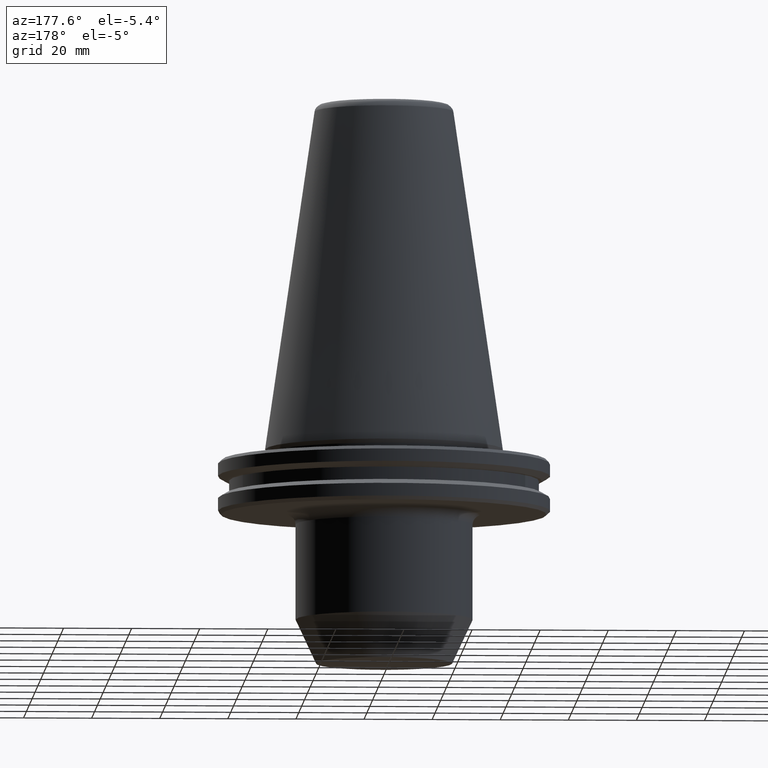
[diagram: clean part render]
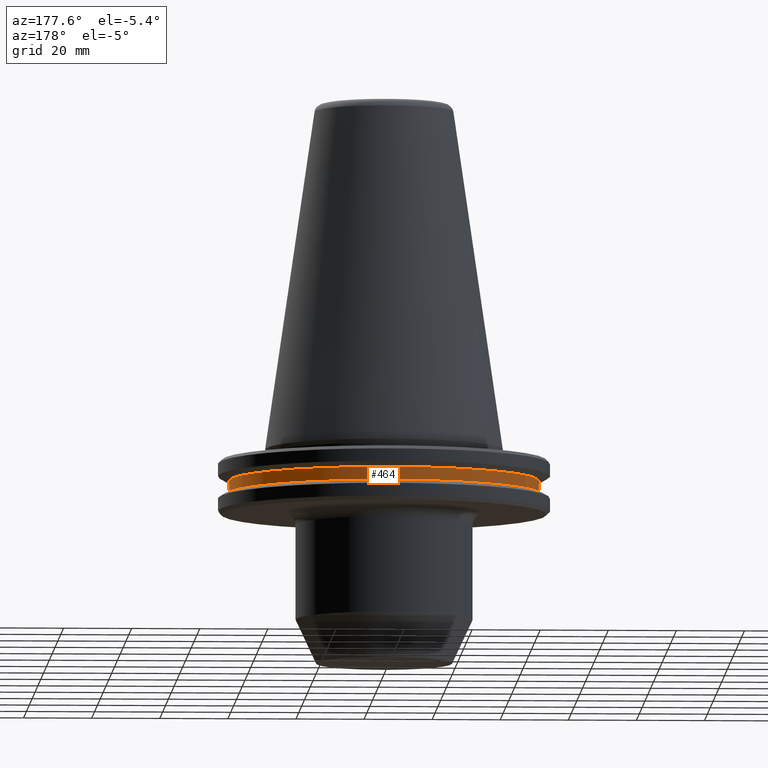
[diagram: same view with one face highlighted and labeled with its STEP entity id]
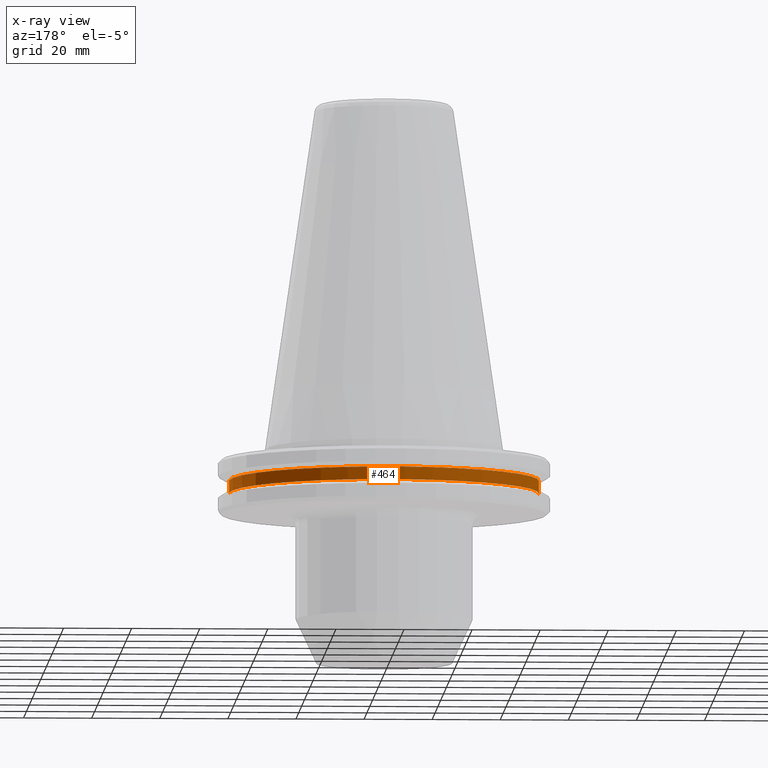
[diagram: x-ray of the same camera — body ghosted, the highlighted face saturated]
A machine part, auxiliary view. The second image highlights one B-rep face of the part: STEP entity #464.
The next image is the same camera in x-ray: the body ghosted, the highlighted face saturated — about 0% of this face is hidden behind the body in this view.
In plain terms, the highlighted cylindrical surface (partial cylindrical patch) has radius 45.5 mm, axis along (-0, -0, 1).
Its self-contained STEP definition (entity closure, byte-faithful):
#35 = VECTOR ( 'NONE', #479, 1000.000000000000000 ) ;
#53 = EDGE_LOOP ( 'NONE', ( #861, #99, #977, #246 ) ) ;
#74 = LINE ( 'NONE', #238, #656 ) ;
#99 = ORIENTED_EDGE ( 'NONE', *, *, #448, .T. ) ;
#103 = AXIS2_PLACEMENT_3D ( 'NONE', #953, #992, #193 ) ;
#104 = CIRCLE ( 'NONE', #103, 45.50000000000020600 ) ;
#161 = EDGE_CURVE ( 'NONE', #937, #352, #429, .T. ) ;
#193 = DIRECTION ( 'NONE',  ( 1.000000000000000000, 0.0000000000000000000, 0.0000000000000000000 ) ) ;
#200 = CARTESIAN_POINT ( 'NONE',  ( 0.0000000000000000000, 0.0000000000000000000, 101.7499999999999600 ) ) ;
#203 = CARTESIAN_POINT ( 'NONE',  ( -45.50000000000020600, 5.572142936120482400E-015, -12.97500000000006900 ) ) ;
#238 = CARTESIAN_POINT ( 'NONE',  ( -45.50000000000020600, 5.572142936120482400E-015, 101.7499999999999600 ) ) ;
#245 = CARTESIAN_POINT ( 'NONE',  ( -45.50000000000020600, 5.572142936120482400E-015, -9.224999999999926800 ) ) ;
#246 = ORIENTED_EDGE ( 'NONE', *, *, #988, .F. ) ;
#290 = CARTESIAN_POINT ( 'NONE',  ( 45.50000000000020600, 0.0000000000000000000, 101.7499999999999600 ) ) ;
#347 = EDGE_CURVE ( 'NONE', #395, #955, #104, .T. ) ;
#351 = DIRECTION ( 'NONE',  ( -0.0000000000000000000, -0.0000000000000000000, 1.000000000000000000 ) ) ;
#352 = VERTEX_POINT ( 'NONE', #245 ) ;
#381 = AXIS2_PLACEMENT_3D ( 'NONE', #621, #770, #961 ) ;
#395 = VERTEX_POINT ( 'NONE', #972 ) ;
#429 = CIRCLE ( 'NONE', #381, 45.50000000000020600 ) ;
#441 = FACE_OUTER_BOUND ( 'NONE', #53, .T. ) ;
#448 = EDGE_CURVE ( 'NONE', #955, #352, #74, .T. ) ;
#464 = ADVANCED_FACE ( 'NONE', ( #441 ), #627, .T. ) ;
#479 = DIRECTION ( 'NONE',  ( -0.0000000000000000000, -0.0000000000000000000, 1.000000000000000000 ) ) ;
#508 = CARTESIAN_POINT ( 'NONE',  ( 45.50000000000020600, 0.0000000000000000000, -9.224999999999926800 ) ) ;
#621 = CARTESIAN_POINT ( 'NONE',  ( 0.0000000000000000000, 0.0000000000000000000, -9.224999999999926800 ) ) ;
#627 = CYLINDRICAL_SURFACE ( 'NONE', #835, 45.50000000000020600 ) ;
#656 = VECTOR ( 'NONE', #974, 1000.000000000000000 ) ;
#770 = DIRECTION ( 'NONE',  ( -0.0000000000000000000, -0.0000000000000000000, 1.000000000000000000 ) ) ;
#829 = DIRECTION ( 'NONE',  ( 1.000000000000000000, 0.0000000000000000000, 0.0000000000000000000 ) ) ;
#835 = AXIS2_PLACEMENT_3D ( 'NONE', #200, #351, #829 ) ;
#861 = ORIENTED_EDGE ( 'NONE', *, *, #347, .T. ) ;
#864 = LINE ( 'NONE', #290, #35 ) ;
#937 = VERTEX_POINT ( 'NONE', #508 ) ;
#953 = CARTESIAN_POINT ( 'NONE',  ( 0.0000000000000000000, 0.0000000000000000000, -12.97500000000006900 ) ) ;
#955 = VERTEX_POINT ( 'NONE', #203 ) ;
#961 = DIRECTION ( 'NONE',  ( 1.000000000000000000, 0.0000000000000000000, 0.0000000000000000000 ) ) ;
#972 = CARTESIAN_POINT ( 'NONE',  ( 45.50000000000020600, 0.0000000000000000000, -12.97500000000006900 ) ) ;
#974 = DIRECTION ( 'NONE',  ( -0.0000000000000000000, -0.0000000000000000000, 1.000000000000000000 ) ) ;
#977 = ORIENTED_EDGE ( 'NONE', *, *, #161, .F. ) ;
#988 = EDGE_CURVE ( 'NONE', #395, #937, #864, .T. ) ;
#992 = DIRECTION ( 'NONE',  ( -0.0000000000000000000, -0.0000000000000000000, 1.000000000000000000 ) ) ;